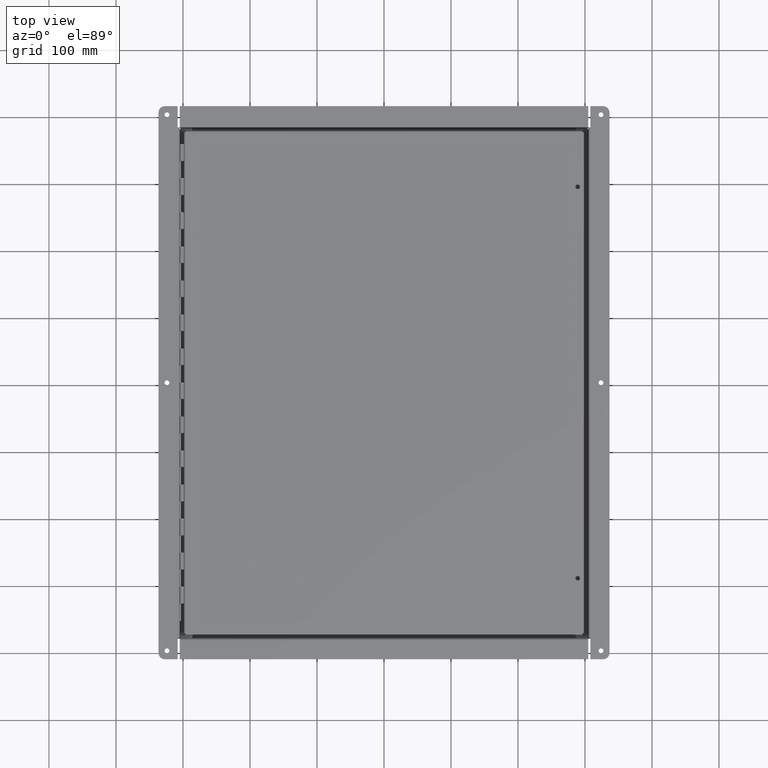
[diagram: clean part render]
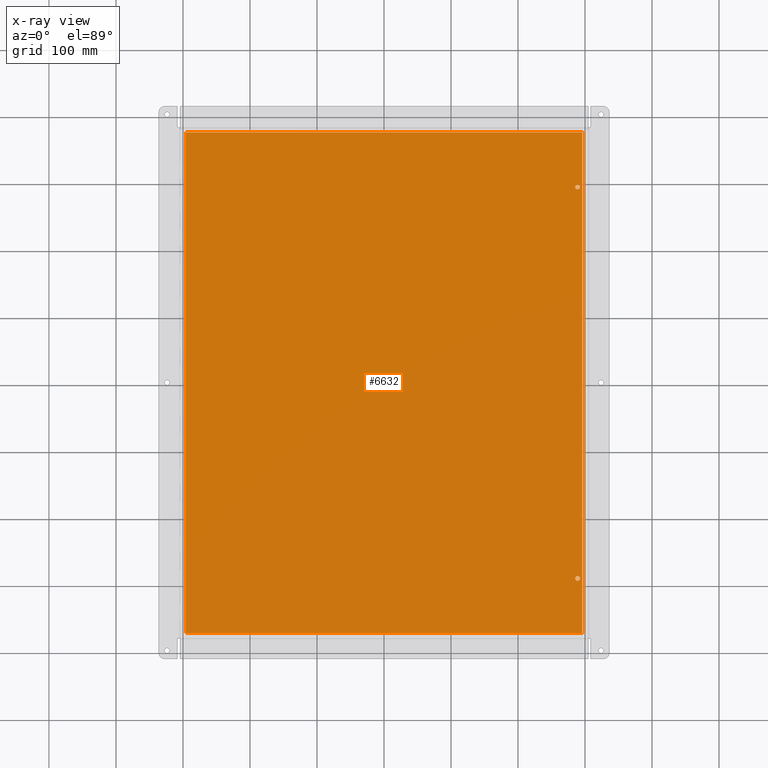
[diagram: x-ray — body ghosted, one internal face saturated and labeled with its STEP entity id]
A machine part, top view, then the same camera in x-ray: the body is ghosted and one INTERNAL B-rep face — a face not visible from any outside direction — is saturated and labeled: STEP entity #6632.
In plain terms, the highlighted planar face has unit normal (0, -0, 1).
Its self-contained STEP definition (entity closure, byte-faithful):
#89=FACE_BOUND($,#1245,.T.);
#90=FACE_BOUND($,#1246,.T.);
#91=FACE_BOUND($,#1247,.T.);
#186=CIRCLE($,#7028,0.1405);
#188=CIRCLE($,#7031,0.1405);
#528=PLANE($,#7061);
#1245=EDGE_LOOP($,(#5021));
#1246=EDGE_LOOP($,(#5022));
#1247=EDGE_LOOP($,(#5023,#5024,#5025,#5026));
#1784=LINE($,#10989,#2412);
#1799=LINE($,#11089,#2427);
#1814=LINE($,#11189,#2442);
#1828=LINE($,#11286,#2456);
#2412=VECTOR($,#8056,23.2895);
#2427=VECTOR($,#8085,29.4145);
#2442=VECTOR($,#8114,23.2895);
#2456=VECTOR($,#8142,29.4145);
#2969=VERTEX_POINT($,#10878);
#2971=VERTEX_POINT($,#10883);
#2982=VERTEX_POINT($,#10942);
#2983=VERTEX_POINT($,#10972);
#2993=VERTEX_POINT($,#11044);
#3003=VERTEX_POINT($,#11144);
#3649=EDGE_CURVE($,#2969,#2969,#186,.T.);
#3651=EDGE_CURVE($,#2971,#2971,#188,.T.);
#3672=EDGE_CURVE($,#2983,#2982,#1784,.T.);
#3691=EDGE_CURVE($,#2982,#2993,#1799,.T.);
#3710=EDGE_CURVE($,#2993,#3003,#1814,.T.);
#3728=EDGE_CURVE($,#3003,#2983,#1828,.T.);
#5021=ORIENTED_EDGE($,*,*,#3649,.T.);
#5022=ORIENTED_EDGE($,*,*,#3651,.T.);
#5023=ORIENTED_EDGE($,*,*,#3672,.T.);
#5024=ORIENTED_EDGE($,*,*,#3691,.T.);
#5025=ORIENTED_EDGE($,*,*,#3710,.T.);
#5026=ORIENTED_EDGE($,*,*,#3728,.T.);
#6632=ADVANCED_FACE($,(#89,#90,#91),#528,.F.);
#7028=AXIS2_PLACEMENT_3D($,#10879,#8017,#8018);
#7031=AXIS2_PLACEMENT_3D($,#10884,#8023,#8024);
#7061=AXIS2_PLACEMENT_3D($,#11287,#8143,#8144);
#8017=DIRECTION('center_axis',(0.,0.,1.));
#8018=DIRECTION('ref_axis',(-1.,0.,0.));
#8023=DIRECTION('center_axis',(0.,0.,1.));
#8024=DIRECTION('ref_axis',(-1.,0.,0.));
#8056=DIRECTION($,(1.,2.402294892988E-016,0.));
#8085=DIRECTION($,(3.80412700608503E-016,-1.,0.));
#8114=DIRECTION($,(-1.,0.,0.));
#8142=DIRECTION($,(-9.51031751521258E-017,1.,0.));
#8143=DIRECTION('center_axis',(0.,0.,1.));
#8144=DIRECTION('ref_axis',(1.,0.,0.));
#10878=CARTESIAN_POINT('',(11.5155,-11.5,-1.18448943757508E-012));
#10879=CARTESIAN_POINT('Origin',(11.375,-11.5,0.));
#10883=CARTESIAN_POINT('',(11.5155,11.5,0.));
#10884=CARTESIAN_POINT('Origin',(11.375,11.5,0.));
#10942=CARTESIAN_POINT('',(11.64475,14.70725,0.));
#10972=CARTESIAN_POINT('',(-11.64475,14.70725,0.));
#10989=CARTESIAN_POINT($,(5.822375,14.70725,0.));
#11044=CARTESIAN_POINT('',(11.64475,-14.70725,0.));
#11089=CARTESIAN_POINT($,(11.64475,-7.353625,0.));
#11144=CARTESIAN_POINT('',(-11.64475,-14.70725,0.));
#11189=CARTESIAN_POINT($,(-5.822375,-14.70725,0.));
#11286=CARTESIAN_POINT($,(-11.64475,7.35362499999999,0.));
#11287=CARTESIAN_POINT('Origin',(6.99353086378051E-016,-4.3379338607039E-015,
0.));